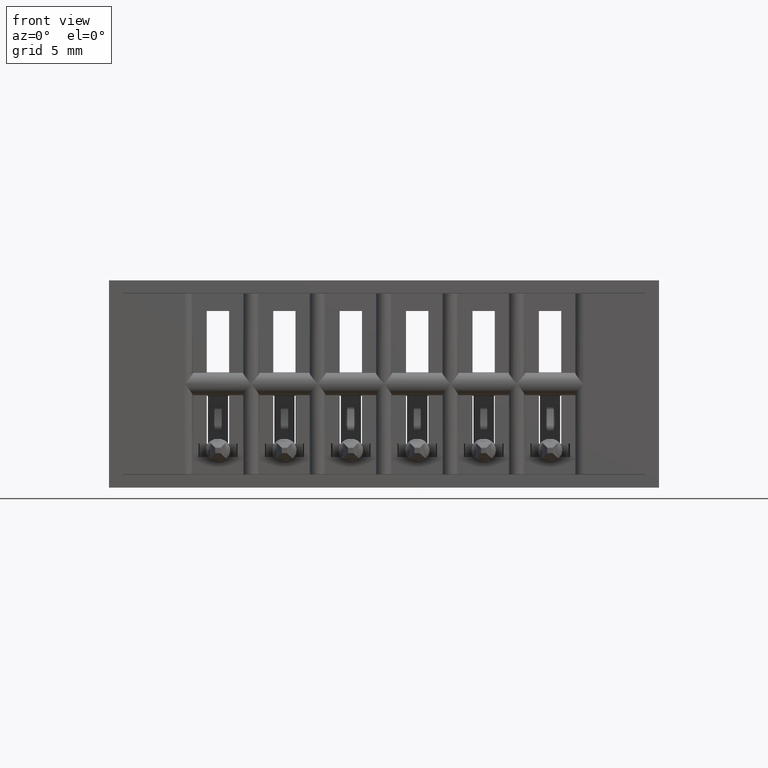
[diagram: clean part render]
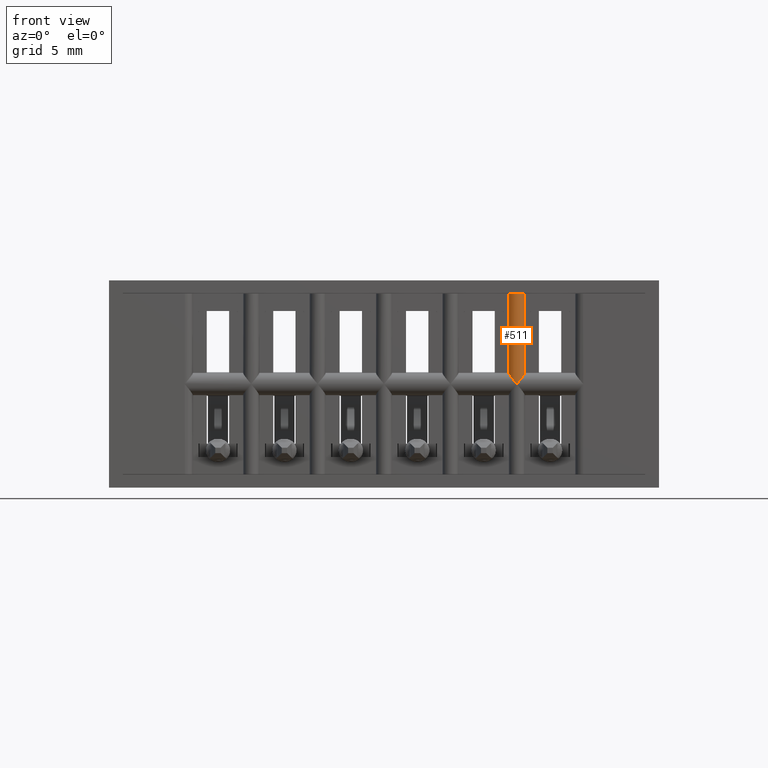
[diagram: same view with one face highlighted and labeled with its STEP entity id]
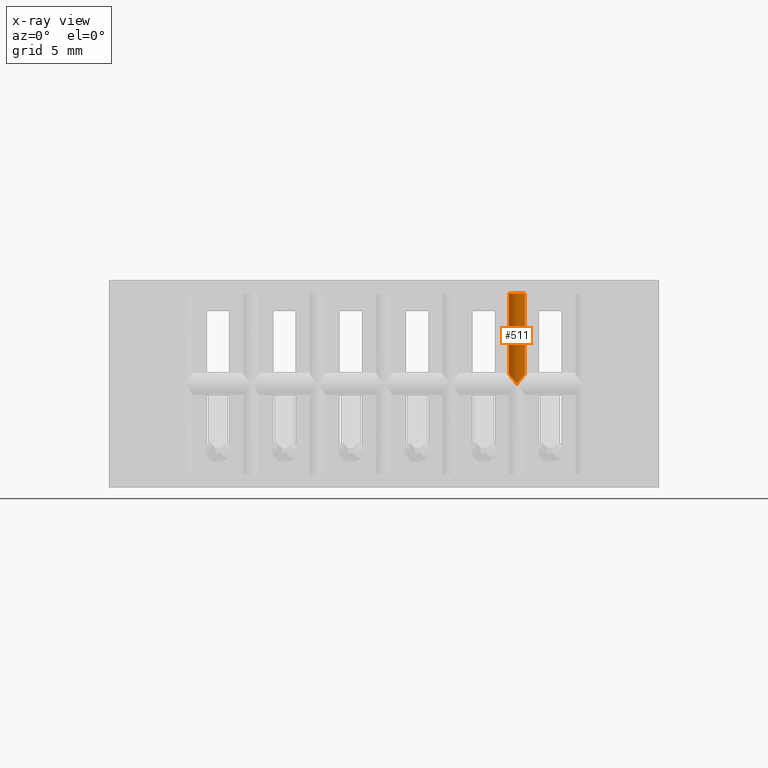
[diagram: x-ray of the same camera — body ghosted, the highlighted face saturated]
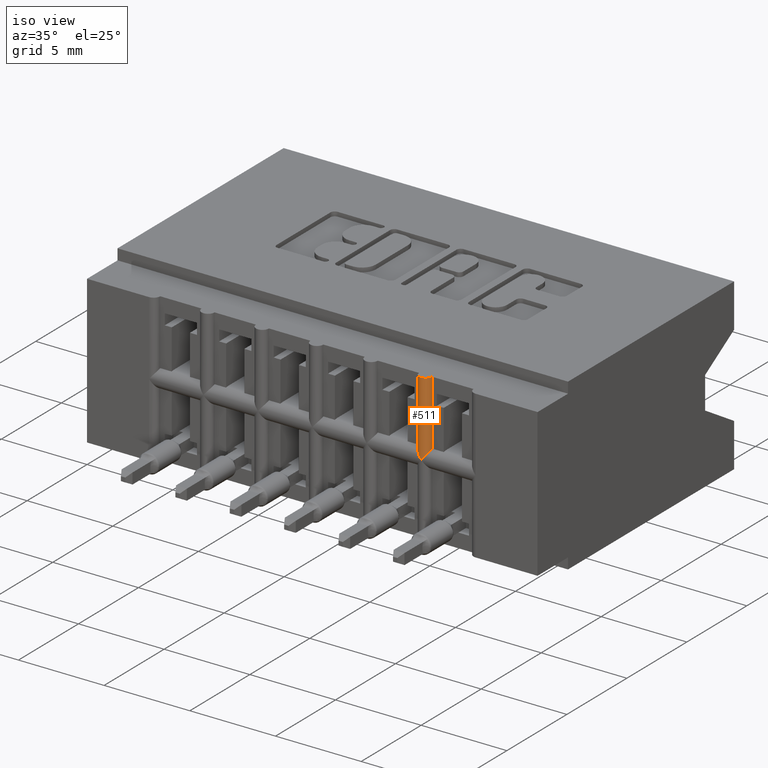
[diagram: same view with one face highlighted and labeled with its STEP entity id]
A machine part, front view. The second image highlights one B-rep face of the part: STEP entity #511.
The next image is the same camera in x-ray: the body ghosted, the highlighted face saturated — about 0% of this face is hidden behind the body in this view.
A second angle (iso view) of the same face is appended — the face is thin or edge-on in the first view.
In plain terms, the highlighted cylindrical surface (edge-blend (fillet) strip) has radius 0.381 mm, axis along (0, 0, 1).
Its self-contained STEP definition (entity closure, byte-faithful):
#22 = CARTESIAN_POINT ( 'NONE',  ( 0.7824999999999997513, 0.01499999999999997169, -0.1741433463853853114 ) ) ;
#433 = LINE ( 'NONE', #12631, #12620 ) ;
#511 = ADVANCED_FACE ( 'NONE', ( #4229 ), #4018, .T. ) ;
#729 = VECTOR ( 'NONE', #3576, 39.37007874015748143 ) ;
#819 = VERTEX_POINT ( 'NONE', #12078 ) ;
#856 = EDGE_CURVE ( 'NONE', #819, #4272, #4114, .T. ) ;
#931 = DIRECTION ( 'NONE',  ( -0.0000000000000000000, 0.0000000000000000000, 1.000000000000000000 ) ) ;
#1105 = CARTESIAN_POINT ( 'NONE',  ( 0.7674999999999996270, -1.387266705709681794E-17, -0.1949999999999995348 ) ) ;
#1344 = LINE ( 'NONE', #5707, #729 ) ;
#2090 = CARTESIAN_POINT ( 'NONE',  ( 0.7674999999999996270, 0.01499999999999997169, -0.02500000000000000486 ) ) ;
#3022 = CARTESIAN_POINT ( 'NONE',  ( 0.7674999999999996270, 0.01499999999999997169, -0.3900000000000000133 ) ) ;
#3537 = CARTESIAN_POINT ( 'NONE',  ( 0.7785899294614945232, 0.004727827854257418694, -0.1811941087690353835 ) ) ;
#3576 = DIRECTION ( 'NONE',  ( -0.0000000000000000000, -0.0000000000000000000, 1.000000000000000000 ) ) ;
#3904 = CARTESIAN_POINT ( 'NONE',  ( 0.7564100705385048418, 0.004727827854257417826, -0.1811941087690353835 ) ) ;
#4018 = CYLINDRICAL_SURFACE ( 'NONE', #12438, 0.01499999999999997689 ) ;
#4114 = B_SPLINE_CURVE_WITH_KNOTS ( 'NONE', 3,
 ( #1105, #8967, #9912, #3537, #7890, #5460, #9838, #22 ),
 .UNSPECIFIED., .F., .F.,
 ( 4, 2, 2, 4 ),
 ( -4.727805137953208709E-06, 0.0003973922096147074743, 0.0005984522169910349177, 0.0007995122243673624153 ),
 .UNSPECIFIED. ) ;
#4229 = FACE_OUTER_BOUND ( 'NONE', #11582, .T. ) ;
#4272 = VERTEX_POINT ( 'NONE', #9969 ) ;
#4958 = VERTEX_POINT ( 'NONE', #13729 ) ;
#5038 = CARTESIAN_POINT ( 'NONE',  ( 0.7674999999999996270, -1.387266705709681794E-17, -0.1949999999999995348 ) ) ;
#5460 = CARTESIAN_POINT ( 'NONE',  ( 0.7818510372071354464, 0.01013332474575913585, -0.1763116530175210528 ) ) ;
#5707 = CARTESIAN_POINT ( 'NONE',  ( 0.7824999999999997513, 0.01499999999999997169, -0.3900000000000000133 ) ) ;
#6110 = CARTESIAN_POINT ( 'NONE',  ( 0.7531489627928635855, 0.01013332474575914105, -0.1763116530175211361 ) ) ;
#6144 = ORIENTED_EDGE ( 'NONE', *, *, #7656, .F. ) ;
#6197 = AXIS2_PLACEMENT_3D ( 'NONE', #2090, #931, #14144 ) ;
#6611 = CARTESIAN_POINT ( 'NONE',  ( 0.7524999999999997247, 0.01499999999999997169, -0.02500000000000000486 ) ) ;
#7112 = CARTESIAN_POINT ( 'NONE',  ( 0.7524999999999997247, 0.01499999999999997516, -0.1741433463853853669 ) ) ;
#7656 = EDGE_CURVE ( 'NONE', #13824, #4958, #10317, .T. ) ;
#7683 = ORIENTED_EDGE ( 'NONE', *, *, #8411, .F. ) ;
#7808 = ORIENTED_EDGE ( 'NONE', *, *, #11047, .F. ) ;
#7890 = CARTESIAN_POINT ( 'NONE',  ( 0.7799024326785582995, 0.006292735182351931987, -0.1794001882551290450 ) ) ;
#7906 = EDGE_CURVE ( 'NONE', #4272, #4958, #1344, .T. ) ;
#8352 = ORIENTED_EDGE ( 'NONE', *, *, #856, .T. ) ;
#8409 = B_SPLINE_CURVE_WITH_KNOTS ( 'NONE', 3,
 ( #5038, #10277, #13746, #3904, #12798, #6110, #13687, #7112 ),
 .UNSPECIFIED., .F., .F.,
 ( 4, 2, 2, 4 ),
 ( -4.727805137949925609E-06, 0.0003973922096147105101, 0.0005984522169910377366, 0.0007995122243673653427 ),
 .UNSPECIFIED. ) ;
#8411 = EDGE_CURVE ( 'NONE', #819, #8519, #8409, .T. ) ;
#8519 = VERTEX_POINT ( 'NONE', #13097 ) ;
#8967 = CARTESIAN_POINT ( 'NONE',  ( 0.7708600537115447571, -1.410609986962870143E-17, -0.1909307627898318149 ) ) ;
#9528 = DIRECTION ( 'NONE',  ( 1.000000000000000000, 0.0000000000000000000, 0.0000000000000000000 ) ) ;
#9838 = CARTESIAN_POINT ( 'NONE',  ( 0.7824999999999994182, 0.01244419070630513151, -0.1750011381187306647 ) ) ;
#9912 = CARTESIAN_POINT ( 'NONE',  ( 0.7742929970070985268, 0.001112184625638628363, -0.1867889451262268186 ) ) ;
#9969 = CARTESIAN_POINT ( 'NONE',  ( 0.7824999999999997513, 0.01499999999999997169, -0.1741433463853853114 ) ) ;
#10277 = CARTESIAN_POINT ( 'NONE',  ( 0.7641399462884641558, -1.405052027991404523E-17, -0.1909307627898241544 ) ) ;
#10317 = CIRCLE ( 'NONE', #6197, 0.01499999999999997689 ) ;
#11047 = EDGE_CURVE ( 'NONE', #8519, #13824, #433, .T. ) ;
#11151 = ORIENTED_EDGE ( 'NONE', *, *, #7906, .T. ) ;
#11582 = EDGE_LOOP ( 'NONE', ( #8352, #11151, #6144, #7808, #7683 ) ) ;
#12078 = CARTESIAN_POINT ( 'NONE',  ( 0.7674999999999996270, -1.387266705709681794E-17, -0.1949999999999995348 ) ) ;
#12438 = AXIS2_PLACEMENT_3D ( 'NONE', #3022, #12915, #9528 ) ;
#12620 = VECTOR ( 'NONE', #12711, 39.37007874015748143 ) ;
#12631 = CARTESIAN_POINT ( 'NONE',  ( 0.7524999999999997247, 0.01499999999999997169, -0.3900000000000000133 ) ) ;
#12711 = DIRECTION ( 'NONE',  ( -0.0000000000000000000, -0.0000000000000000000, 1.000000000000000000 ) ) ;
#12798 = CARTESIAN_POINT ( 'NONE',  ( 0.7550975673214408435, 0.006292735182351932854, -0.1794001882551291005 ) ) ;
#12915 = DIRECTION ( 'NONE',  ( -0.0000000000000000000, -0.0000000000000000000, 1.000000000000000000 ) ) ;
#13097 = CARTESIAN_POINT ( 'NONE',  ( 0.7524999999999997247, 0.01499999999999997516, -0.1741433463853853669 ) ) ;
#13687 = CARTESIAN_POINT ( 'NONE',  ( 0.7524999999999998357, 0.01244419070630513498, -0.1750011381187307480 ) ) ;
#13729 = CARTESIAN_POINT ( 'NONE',  ( 0.7824999999999997513, 0.01499999999999997169, -0.02500000000000000486 ) ) ;
#13746 = CARTESIAN_POINT ( 'NONE',  ( 0.7607070029929008381, 0.001112184625638628580, -0.1867889451262267908 ) ) ;
#13824 = VERTEX_POINT ( 'NONE', #6611 ) ;
#14144 = DIRECTION ( 'NONE',  ( 1.000000000000000000, 0.0000000000000000000, 0.0000000000000000000 ) ) ;